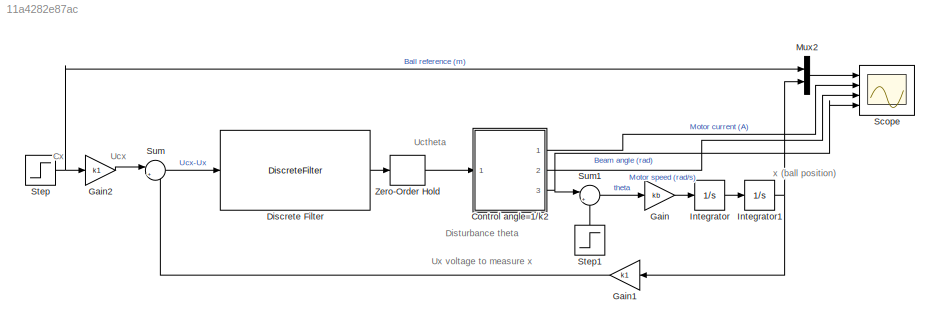
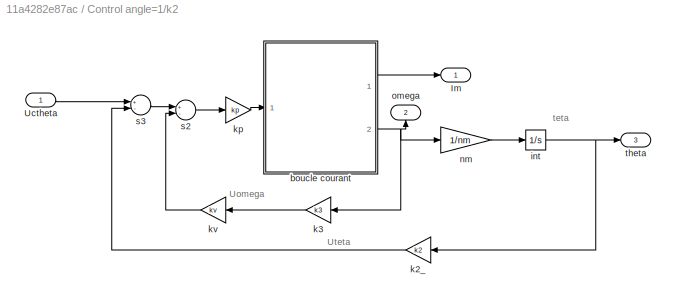
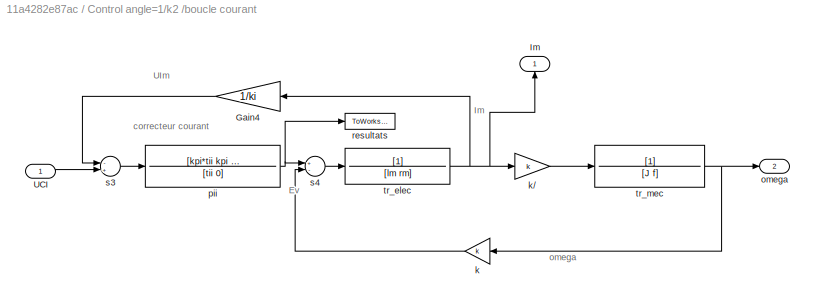
MODEL slx_11a4282e87ac
KIND model
CONFIG AbsTol = auto
CONFIG EnableMultiTasking = off
CONFIG FixedStep = auto
CONFIG MaxStep = auto
CONFIG MinStep = auto
CONFIG RelTol = 1e-3
CONFIG SampleTimeConstraint = Unconstrained
CONFIG Solver = VariableStepAuto
CONFIG SolverName = VariableStepAuto
CONFIG StartTime = 0.0
CONFIG StopTime = 10.0
BLOCK [SubSystem] Control angle=1//k2 
  Ports = [1, 3]
  RequestExecContextInheritance = off
BLOCK [Outport] Control angle=1//k2 /Im
  IconDisplay = Port number
BLOCK [Inport] Control angle=1//k2 /Uctheta
  IconDisplay = Port number
BLOCK [SubSystem] Control angle=1//k2 /boucle courant
  Ports = [1, 2]
  RequestExecContextInheritance = off
BLOCK [Gain] Control angle=1//k2 /boucle courant/Gain4
  Gain = 1/ki
BLOCK [Outport] Control angle=1//k2 /boucle courant/Im
  IconDisplay = Port number
BLOCK [Inport] Control angle=1//k2 /boucle courant/UCI
  IconDisplay = Port number
BLOCK [Gain] Control angle=1//k2 /boucle courant/k
  Gain = k
BLOCK [Gain] Control angle=1//k2 /boucle courant/k// 
  Gain = k
BLOCK [Outport] Control angle=1//k2 /boucle courant/omega
  IconDisplay = Port number
  Port = 2
BLOCK [TransferFcn] Control angle=1//k2 /boucle courant/pii
  Denominator = [tii 0]
  Numerator = [kpi*tii kpi ]
BLOCK [ToWorkspace] Control angle=1//k2 /boucle courant/resultats
  MaxDataPoints = 20000
  Ports = [1]
  VariableName = Um
BLOCK [Sum] Control angle=1//k2 /boucle courant/s3
  Inputs = -+
  Ports = [2, 1]
BLOCK [Sum] Control angle=1//k2 /boucle courant/s4
  Inputs = +-
  Ports = [2, 1]
BLOCK [TransferFcn] Control angle=1//k2 /boucle courant/tr_elec
  Denominator = [lm rm]
BLOCK [TransferFcn] Control angle=1//k2 /boucle courant/tr_mec
  Denominator = [J f]
BLOCK [Integrator] Control angle=1//k2 /int
  Ports = [1, 1]
BLOCK [Gain] Control angle=1//k2 /k2_
  Gain = k2
BLOCK [Gain] Control angle=1//k2 /k3
  Gain = k3
BLOCK [Gain] Control angle=1//k2 /kp
  Gain = kp
BLOCK [Gain] Control angle=1//k2 /kv
  Gain = kv
BLOCK [Gain] Control angle=1//k2 /nm
  Gain = 1/nm
BLOCK [Outport] Control angle=1//k2 /omega
  IconDisplay = Port number
  Port = 2
BLOCK [Sum] Control angle=1//k2 /s2
  Inputs = +-
  Ports = [2, 1]
BLOCK [Sum] Control angle=1//k2 /s3
  Inputs = +-
  Ports = [2, 1]
BLOCK [Outport] Control angle=1//k2 /theta
  IconDisplay = Port number
  Port = 3
BLOCK [DiscreteFilter] Discrete Filter
  Denominator = [1 (s1-1) -s1]
  InputPortMap = u0
  Numerator = [r0 r1 r2]
  Ports = [1, 1]
  SampleTime = Te
BLOCK [Gain] Gain
  Gain = kb
  OutDataTypeStr = Inherit: Inherit via internal rule
  ParamDataTypeStr = Inherit: Inherit via internal rule
  SaturateOnIntegerOverflow = off
BLOCK [Gain] Gain1
  Gain = k1
BLOCK [Gain] Gain2
  Gain = k1
BLOCK [Integrator] Integrator
  Ports = [1, 1]
BLOCK [Integrator] Integrator1
  Ports = [1, 1]
BLOCK [Mux] Mux2
  DisplayOption = bar
  Inputs = 2
  Ports = [2, 1]
BLOCK [Scope] Scope
  Floating = off
  NumInputPorts = 4
  Ports = [4]
  ScopeSpecificationString = Simulink.scopes.TimeScopeBlockCfg('CurrentConfiguration', extmgr.ConfigurationSet(extmgr.Configuration('Core','General UI',true,'FigureColor',[1 1 1]),extmgr.Configuration('Core','Source UI',true),extmgr.Configuration('Sources','WiredSimulink',true,'DataLoggingVariableName','ScopeData3'),extmgr.Configuration('Visuals','Time Domain',true,'SerializedDisplays',{struct('MinYLimReal','-0.02267','MaxYLi...<+4478ch>
BLOCK [Step] Step
  After = 0.1
  SampleTime = 0
BLOCK [Step] Step1
  After = 1*pi/180
  SampleTime = 0
  Time = 10
BLOCK [Sum] Sum
  IconShape = round
  Inputs = |+-
  Ports = [2, 1]
BLOCK [Sum] Sum1
  IconShape = round
  Inputs = |++
  Ports = [2, 1]
BLOCK [ZeroOrderHold] Zero-Order Hold
  SampleTime = -1
ANNOTATION (root): Cx
ANNOTATION (root): Disturbance theta
ANNOTATION (root): Uctheta
ANNOTATION (root): Ucx
ANNOTATION (root): Ux voltage to measure x
ANNOTATION (root): x (ball position)
ANNOTATION Control angle=1//k2 : Uomega
ANNOTATION Control angle=1//k2 : Uteta
ANNOTATION Control angle=1//k2 : teta
ANNOTATION Control angle=1//k2 /boucle courant: Ev
ANNOTATION Control angle=1//k2 /boucle courant: Im
ANNOTATION Control angle=1//k2 /boucle courant: UIm
ANNOTATION Control angle=1//k2 /boucle courant: correcteur courant
ANNOTATION Control angle=1//k2 /boucle courant: omega
LINE Control angle=1//k2 /Uctheta:1 -> Control angle=1//k2 /s3:1
LINE Control angle=1//k2 /boucle courant/Gain4:1 -> Control angle=1//k2 /boucle courant/s3:1
LINE Control angle=1//k2 /boucle courant/UCI:1 -> Control angle=1//k2 /boucle courant/s3:2
LINE Control angle=1//k2 /boucle courant/k// :1 -> Control angle=1//k2 /boucle courant/tr_mec:1
LINE Control angle=1//k2 /boucle courant/k:1 -> Control angle=1//k2 /boucle courant/s4:2
NET Control angle=1//k2 /boucle courant/pii:1 -> Control angle=1//k2 /boucle courant/resultats:1, Control angle=1//k2 /boucle courant/s4:1
LINE Control angle=1//k2 /boucle courant/s3:1 -> Control angle=1//k2 /boucle courant/pii:1
LINE Control angle=1//k2 /boucle courant/s4:1 -> Control angle=1//k2 /boucle courant/tr_elec:1
NET Control angle=1//k2 /boucle courant/tr_elec:1 -> Control angle=1//k2 /boucle courant/Gain4:1, Control angle=1//k2 /boucle courant/Im:1, Control angle=1//k2 /boucle courant/k// :1
NET Control angle=1//k2 /boucle courant/tr_mec:1 -> Control angle=1//k2 /boucle courant/k:1, Control angle=1//k2 /boucle courant/omega:1
LINE Control angle=1//k2 /boucle courant:1 -> Control angle=1//k2 /Im:1
NET Control angle=1//k2 /boucle courant:2 -> Control angle=1//k2 /k3:1, Control angle=1//k2 /nm:1, Control angle=1//k2 /omega:1
NET Control angle=1//k2 /int:1 -> Control angle=1//k2 /k2_:1, Control angle=1//k2 /theta:1
LINE Control angle=1//k2 /k2_:1 -> Control angle=1//k2 /s3:2
LINE Control angle=1//k2 /k3:1 -> Control angle=1//k2 /kv:1
LINE Control angle=1//k2 /kp:1 -> Control angle=1//k2 /boucle courant:1
LINE Control angle=1//k2 /kv:1 -> Control angle=1//k2 /s2:2
LINE Control angle=1//k2 /nm:1 -> Control angle=1//k2 /int:1
LINE Control angle=1//k2 /s2:1 -> Control angle=1//k2 /kp:1
LINE Control angle=1//k2 /s3:1 -> Control angle=1//k2 /s2:1
LINE Control angle=1//k2 :1 -> Scope:2
LINE Control angle=1//k2 :2 -> Scope:3
NET Control angle=1//k2 :3 -> Scope:4, Sum1:1
LINE Discrete Filter:1 -> Zero-Order Hold:1
LINE Gain1:1 -> Sum:2
LINE Gain2:1 -> Sum:1
LINE Gain:1 -> Integrator:1
NET Integrator1:1 -> Gain1:1, Mux2:2
LINE Integrator:1 -> Integrator1:1
LINE Mux2:1 -> Scope:1
LINE Step1:1 -> Sum1:2
NET Step:1 -> Gain2:1, Mux2:1
LINE Sum1:1 -> Gain:1
LINE Sum:1 -> Discrete Filter:1
LINE Zero-Order Hold:1 -> Control angle=1//k2 :1
note: NET lines group one-source signal fan-out (src -> all destinations, sorted); 1:1 wires keep LINE
